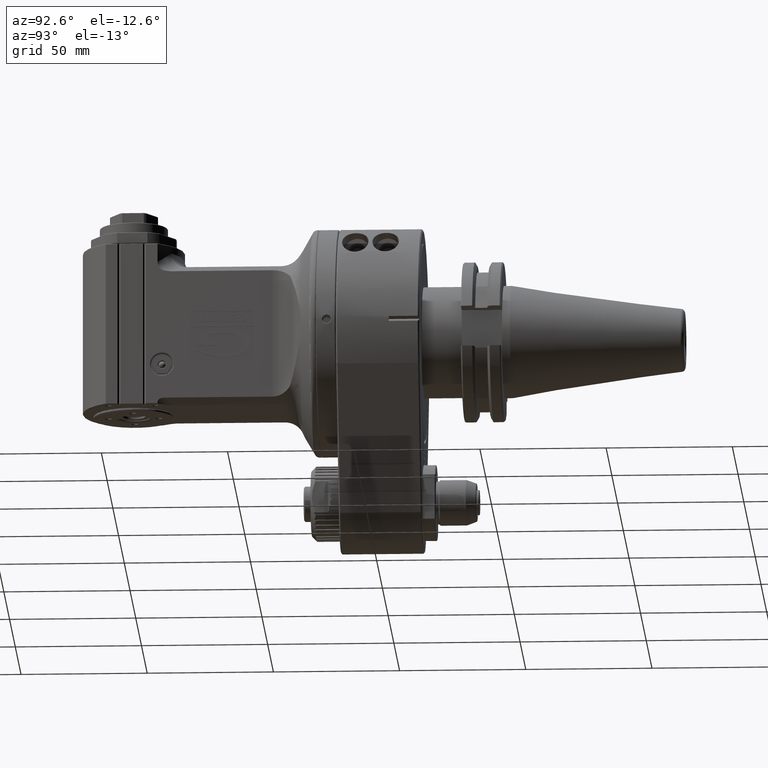
[diagram: clean part render]
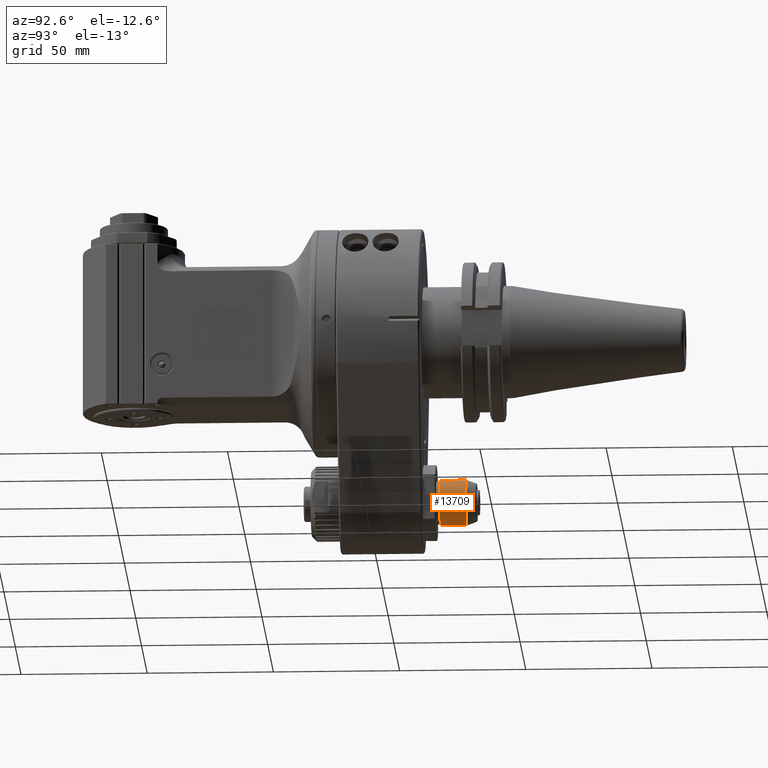
[diagram: same view with one face highlighted and labeled with its STEP entity id]
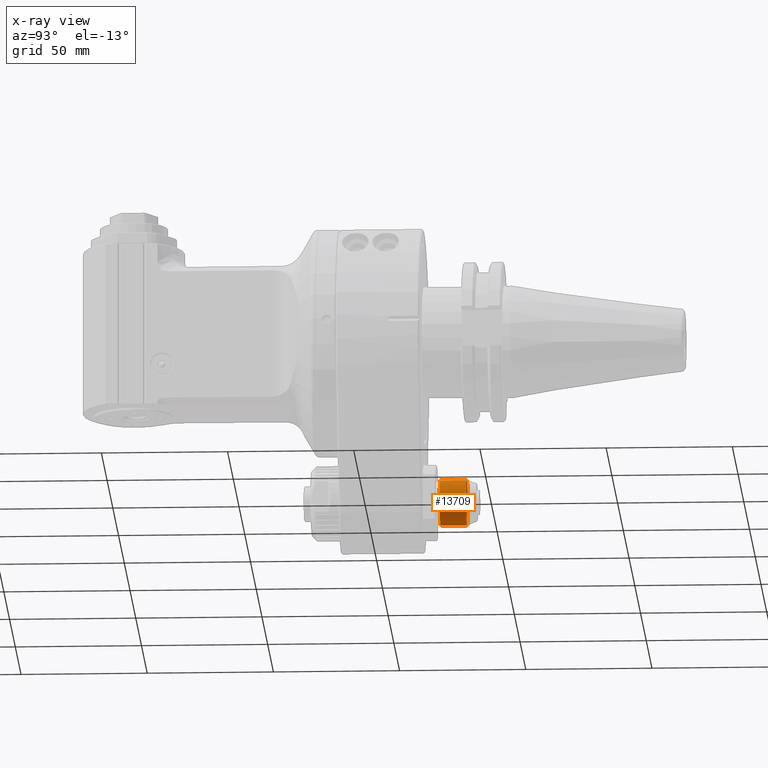
[diagram: x-ray of the same camera — body ghosted, the highlighted face saturated]
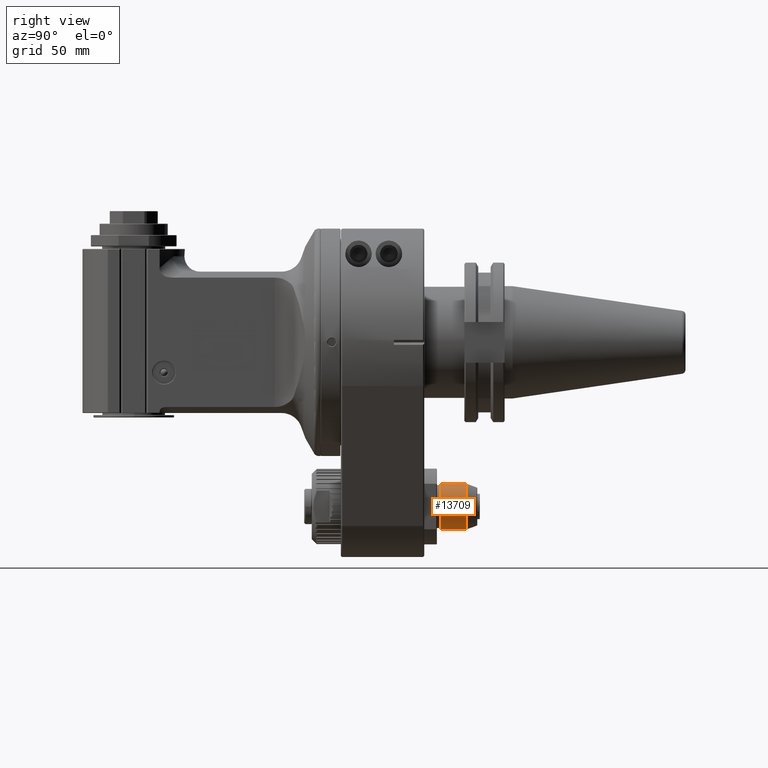
[diagram: same view with one face highlighted and labeled with its STEP entity id]
A machine part, auxiliary view. The second image highlights one B-rep face of the part: STEP entity #13709.
The next image is the same camera in x-ray: the body ghosted, the highlighted face saturated — about 0% of this face is hidden behind the body in this view.
A second angle (right view) of the same face is appended — the face is thin or edge-on in the first view.
In plain terms, the highlighted cylindrical surface (bore or boss wall) has radius 9 mm, axis along (0, 1, 0).
Its self-contained STEP definition (entity closure, byte-faithful):
#847=CIRCLE('',#14786,9.);
#848=CIRCLE('',#14788,9.);
#849=CIRCLE('',#14789,9.);
#1243=CYLINDRICAL_SURFACE('',#14787,9.);
#1478=FACE_OUTER_BOUND('',#2296,.T.);
#2296=EDGE_LOOP('',(#9646,#9647,#9648,#9649,#9650));
#3354=LINE('',#21085,#4553);
#4553=VECTOR('',#16734,9.);
#5936=VERTEX_POINT('',#21078);
#5937=VERTEX_POINT('',#21082);
#5938=VERTEX_POINT('',#21083);
#7384=EDGE_CURVE('',#5936,#5936,#847,.T.);
#7386=EDGE_CURVE('',#5937,#5938,#848,.T.);
#7387=EDGE_CURVE('',#5937,#5936,#3354,.T.);
#7388=EDGE_CURVE('',#5938,#5937,#849,.T.);
#9646=ORIENTED_EDGE('',*,*,#7386,.F.);
#9647=ORIENTED_EDGE('',*,*,#7387,.T.);
#9648=ORIENTED_EDGE('',*,*,#7384,.T.);
#9649=ORIENTED_EDGE('',*,*,#7387,.F.);
#9650=ORIENTED_EDGE('',*,*,#7388,.F.);
#13709=ADVANCED_FACE('',(#1478),#1243,.T.);
#14786=AXIS2_PLACEMENT_3D('',#21079,#16727,#16728);
#14787=AXIS2_PLACEMENT_3D('',#21081,#16730,#16731);
#14788=AXIS2_PLACEMENT_3D('',#21084,#16732,#16733);
#14789=AXIS2_PLACEMENT_3D('',#21086,#16735,#16736);
#16727=DIRECTION('center_axis',(0.,1.,0.));
#16728=DIRECTION('ref_axis',(0.,0.,-1.));
#16730=DIRECTION('center_axis',(0.,1.,0.));
#16731=DIRECTION('ref_axis',(0.,0.,1.));
#16732=DIRECTION('center_axis',(0.,1.,0.));
#16733=DIRECTION('ref_axis',(-1.35376032266E-10,0.,-1.));
#16734=DIRECTION('',(0.,-1.,0.));
#16735=DIRECTION('center_axis',(0.,1.,0.));
#16736=DIRECTION('ref_axis',(-1.35376032266E-10,0.,-1.));
#21078=CARTESIAN_POINT('',(-1.10218211923262E-15,39.5,-74.));
#21079=CARTESIAN_POINT('Origin',(0.,39.5,-65.));
#21081=CARTESIAN_POINT('Origin',(0.,-19.5,-65.));
#21082=CARTESIAN_POINT('',(7.992610848928E-9,49.87872992673,-74.));
#21083=CARTESIAN_POINT('',(-9.00000000000229,49.8787299267308,-65.));
#21084=CARTESIAN_POINT('Origin',(0.,49.87872992673,-65.));
#21085=CARTESIAN_POINT('',(-1.10218211923262E-15,-19.5,-74.));
#21086=CARTESIAN_POINT('Origin',(0.,49.87872992673,-65.));